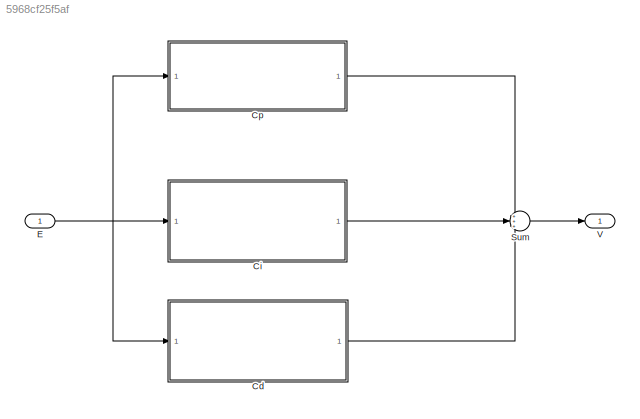
MODEL slx_5968cf25f5af
KIND model
CONFIG AbsTol = auto
CONFIG EnableMultiTasking = off
CONFIG FixedStep = auto
CONFIG MaxStep = auto
CONFIG MinStep = auto
CONFIG RelTol = 1e-3
CONFIG SampleTimeConstraint = Unconstrained
CONFIG SolverName = VariableStepAuto
CONFIG StartTime = 0.0
CONFIG StopTime = 10.0
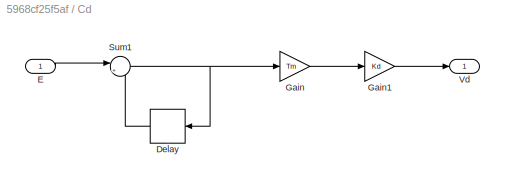
BLOCK [SubSystem] Cd
  Ports = [1, 1]
  RequestExecContextInheritance = off
BLOCK [Delay] Cd/Delay
  DelayLength = 1
  InitialCondition = 0
  InputPortMap = u0
  Ports = [1, 1]
BLOCK [Inport] Cd/E
BLOCK [Gain] Cd/Gain
  Gain = Tm
BLOCK [Gain] Cd/Gain1
  Gain = Kd
BLOCK [Sum] Cd/Sum1
  Inputs = |+-
  Ports = [2, 1]
BLOCK [Outport] Cd/Vd
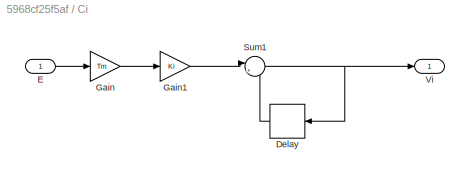
BLOCK [SubSystem] Ci
  Ports = [1, 1]
  RequestExecContextInheritance = off
BLOCK [Delay] Ci/Delay
  DelayLength = 1
  InitialCondition = 0
  InputPortMap = u0
  Ports = [1, 1]
BLOCK [Inport] Ci/E
BLOCK [Gain] Ci/Gain
  Gain = Tm
BLOCK [Gain] Ci/Gain1
  Gain = Ki
BLOCK [Sum] Ci/Sum1
  Inputs = |+-
  Ports = [2, 1]
BLOCK [Outport] Ci/Vi
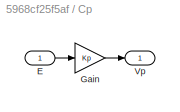
BLOCK [SubSystem] Cp
  Ports = [1, 1]
  RequestExecContextInheritance = off
BLOCK [Inport] Cp/E
BLOCK [Gain] Cp/Gain
  Gain = Kp
BLOCK [Outport] Cp/Vp
BLOCK [Inport] E
BLOCK [Sum] Sum
  Inputs = +++
  Ports = [3, 1]
BLOCK [Outport] V
LINE Cd/Delay:1 -> Cd/Sum1:2
LINE Cd/E:1 -> Cd/Sum1:1
LINE Cd/Gain1:1 -> Cd/Vd:1
LINE Cd/Gain:1 -> Cd/Gain1:1
NET Cd/Sum1:1 -> Cd/Delay:1, Cd/Gain:1
LINE Cd:1 -> Sum:3
LINE Ci/Delay:1 -> Ci/Sum1:2
LINE Ci/E:1 -> Ci/Gain:1
LINE Ci/Gain1:1 -> Ci/Sum1:1
LINE Ci/Gain:1 -> Ci/Gain1:1
NET Ci/Sum1:1 -> Ci/Delay:1, Ci/Vi:1
LINE Ci:1 -> Sum:2
LINE Cp/E:1 -> Cp/Gain:1
LINE Cp/Gain:1 -> Cp/Vp:1
LINE Cp:1 -> Sum:1
NET E:1 -> Cd:1, Ci:1, Cp:1
LINE Sum:1 -> V:1
note: NET lines group one-source signal fan-out (src -> all destinations, sorted); 1:1 wires keep LINE
